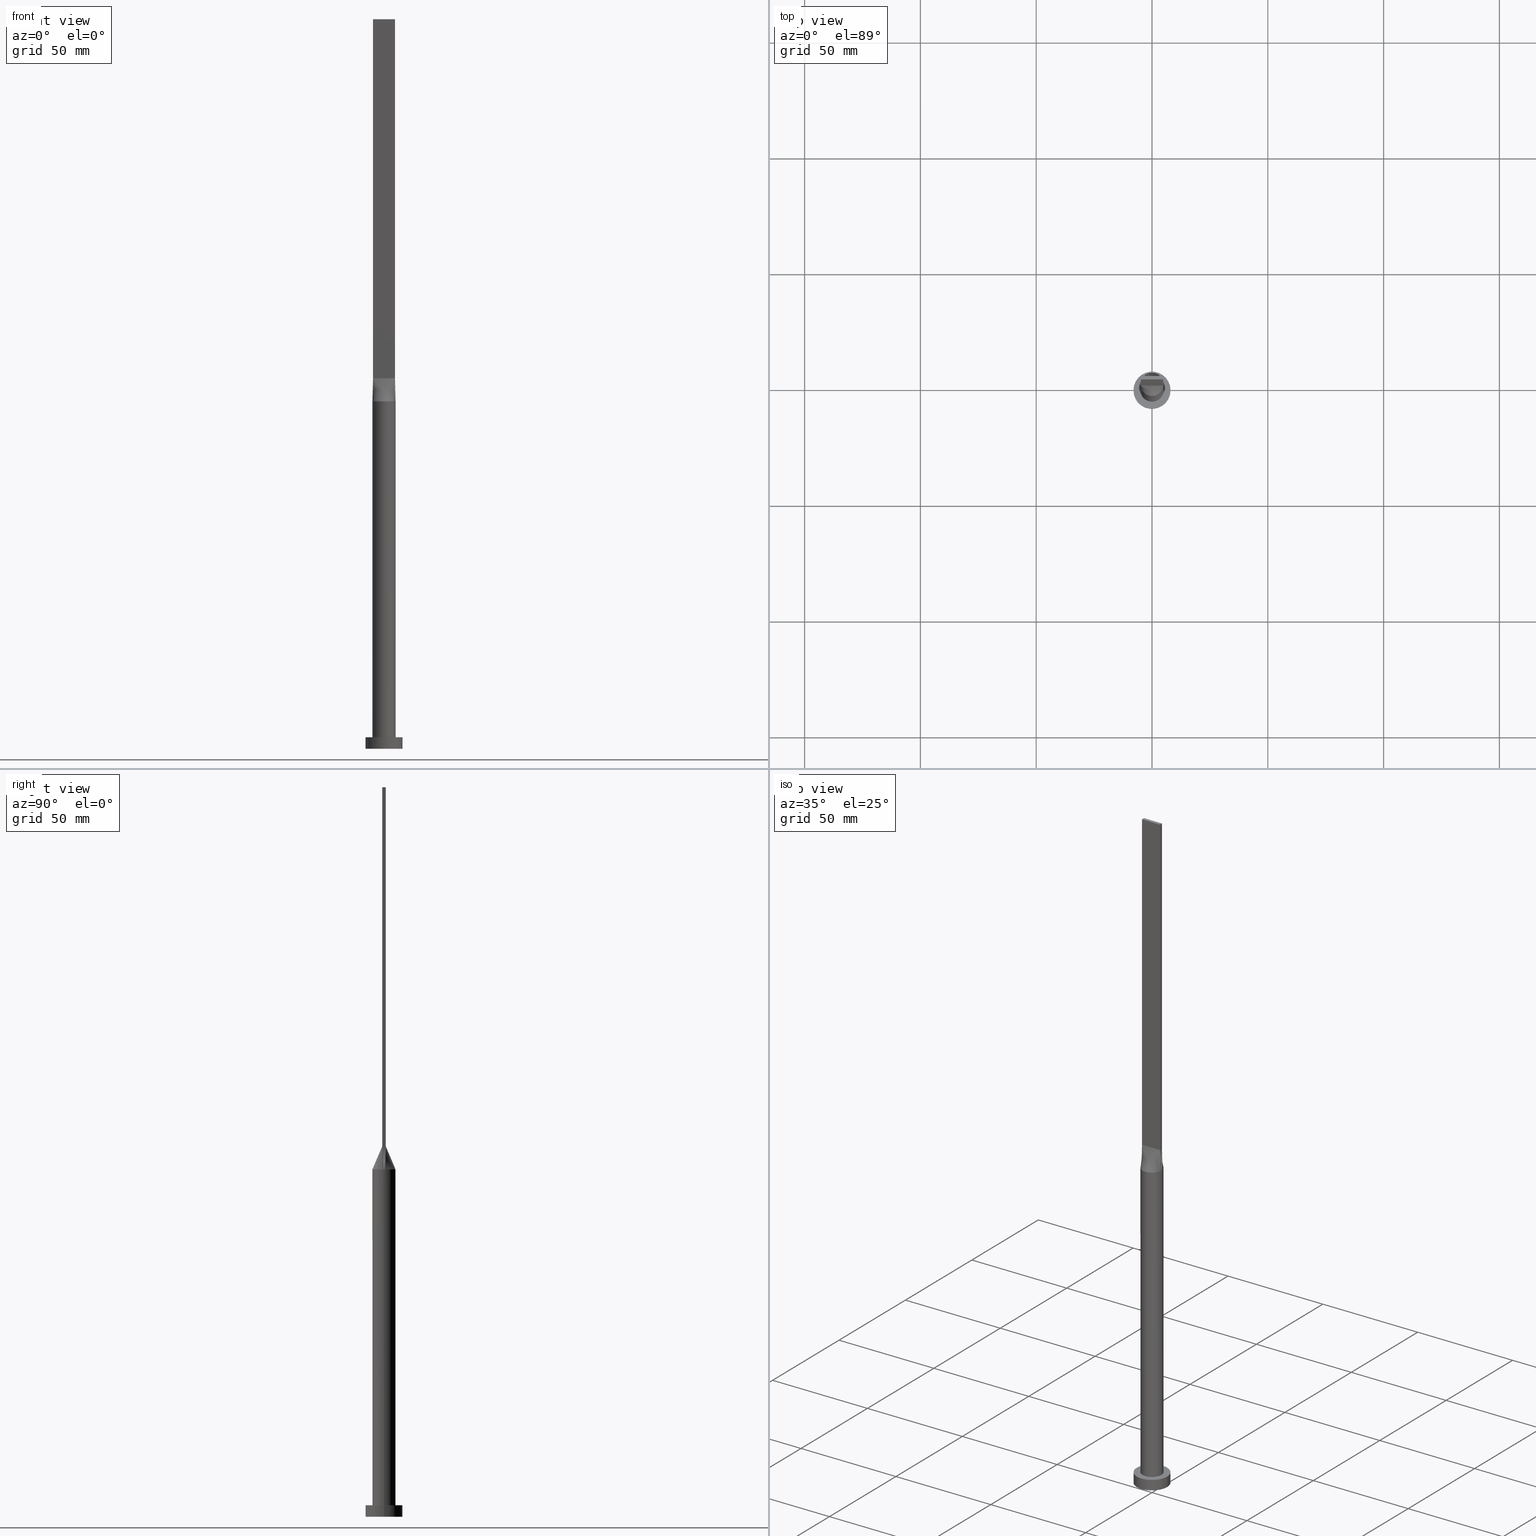
[diagram: canonical four-view strip — front | top / right | iso, engineering-drawing reading convention]
A machine part, canonical four-view strip (front | top / right | iso — engineering-drawing reading convention). The complete STEP part file that produces these views, byte-faithful:
ISO-10303-21;
HEADER;
FILE_DESCRIPTION (( 'STEP AP203' ),
    '1' );
FILE_NAME ('22dd.STEP',
    '2023-02-13T09:34:28',
    ( '' ),
    ( '' ),
    'SwSTEP 2.0',
    'SolidWorks 2019',
    '' );
FILE_SCHEMA (( 'CONFIG_CONTROL_DESIGN' ));
ENDSEC;

DATA;
#1 = EDGE_CURVE ( 'NONE', #397, #456, #499, .T. ) ;
#2 = CARTESIAN_POINT ( 'NONE',  ( -4.938831943662458812, 0.7798155886440081286, 150.0000000000000000 ) ) ;
#3 = DATE_AND_TIME ( #580, #590 ) ;
#4 = PRODUCT ( '22dd', '22dd', '', ( #582 ) ) ;
#5 = CARTESIAN_POINT ( 'NONE',  ( 0.3958333333333295401, 0.7500000000000002220, 159.9999999999999716 ) ) ;
#6 = AXIS2_PLACEMENT_3D ( 'NONE', #248, #101, #45 ) ;
#7 = EDGE_CURVE ( 'NONE', #126, #182, #479, .T. ) ;
#8 = CARTESIAN_POINT ( 'NONE',  ( 2.353781608410062454, 4.424438117685770777, 150.0000000000000000 ) ) ;
#9 = DATE_TIME_ROLE ( 'creation_date' ) ;
#10 = ORIENTED_EDGE ( 'NONE', *, *, #487, .T. ) ;
#11 = DIRECTION ( 'NONE',  ( 1.000000000000000000, 0.000000000000000000, 0.000000000000000000 ) ) ;
#12 = SECURITY_CLASSIFICATION_LEVEL ( 'unclassified' ) ;
#13 = EDGE_LOOP ( 'NONE', ( #309, #24, #236, #586 ) ) ;
#14 = DIRECTION ( 'NONE',  ( 0.000000000000000000, 0.000000000000000000, 1.000000000000000000 ) ) ;
#15 = ORIENTED_EDGE ( 'NONE', *, *, #183, .F. ) ;
#16 = CARTESIAN_POINT ( 'NONE',  ( 0.9895833333333285964, 0.7500000000000002220, 159.9999999999999716 ) ) ;
#17 = AXIS2_PLACEMENT_3D ( 'NONE', #465, #504, #132 ) ;
#18 = ORIENTED_EDGE ( 'NONE', *, *, #514, .F. ) ;
#19 = CC_DESIGN_DATE_AND_TIME_ASSIGNMENT ( #445, #9, ( #299 ) ) ;
#20 = CARTESIAN_POINT ( 'NONE',  ( 0.000000000000000000, 0.000000000000000000, 150.0000000000000000 ) ) ;
#21 = ORIENTED_EDGE ( 'NONE', *, *, #175, .F. ) ;
#22 = CARTESIAN_POINT ( 'NONE',  ( 4.753727492665065668, -1.629988260829203561, 150.0000000000000284 ) ) ;
#23 = CARTESIAN_POINT ( 'NONE',  ( -4.332026455536841070, 2.547220758687717801, 150.0000000000000000 ) ) ;
#24 = ORIENTED_EDGE ( 'NONE', *, *, #487, .F. ) ;
#25 = CARTESIAN_POINT ( 'NONE',  ( 0.9895833333333408088, -0.7499999999999996669, 159.9999999999999432 ) ) ;
#26 = EDGE_CURVE ( 'NONE', #263, #218, #243, .T. ) ;
#27 = CARTESIAN_POINT ( 'NONE',  ( 4.750000000000000000, 0.7500000000000002220, 315.0000000000000000 ) ) ;
#28 = ORIENTED_EDGE ( 'NONE', *, *, #432, .T. ) ;
#29 = VECTOR ( 'NONE', #381, 1000.000000000000000 ) ;
#30 = SECURITY_CLASSIFICATION ( '', '', #12 ) ;
#31 = CARTESIAN_POINT ( 'NONE',  ( 4.354166666666667851, -0.7499999999999997780, 160.0000000000000000 ) ) ;
#32 = DIRECTION ( 'NONE',  ( -0.000000000000000000, 0.000000000000000000, -1.000000000000000000 ) ) ;
#33 = ORIENTED_EDGE ( 'NONE', *, *, #584, .T. ) ;
#34 = CARTESIAN_POINT ( 'NONE',  ( 4.029217956433124748, -3.021257902548483365, 150.0000000000000568 ) ) ;
#35 = PLANE ( 'NONE',  #41 ) ;
#36 = VERTEX_POINT ( 'NONE', #251 ) ;
#37 = CARTESIAN_POINT ( 'NONE',  ( -4.750000000000000000, 0.2500000000000007216, 159.9999999999999716 ) ) ;
#38 = DIRECTION ( 'NONE',  ( -0.000000000000000000, -0.000000000000000000, -1.000000000000000000 ) ) ;
#39 = AXIS2_PLACEMENT_3D ( 'NONE', #47, #296, #245 ) ;
#40 = CARTESIAN_POINT ( 'NONE',  ( 4.874625637456157179, 1.186344398896585606, 150.0000000000000568 ) ) ;
#41 = AXIS2_PLACEMENT_3D ( 'NONE', #370, #374, #32 ) ;
#42 = EDGE_CURVE ( 'NONE', #239, #352, #111, .T. ) ;
#43 =( NAMED_UNIT ( * ) SI_UNIT ( $, .STERADIAN. ) SOLID_ANGLE_UNIT ( ) );
#44 = CARTESIAN_POINT ( 'NONE',  ( -4.750000000000000000, 0.7500000000000002220, 160.0000000000000000 ) ) ;
#45 = DIRECTION ( 'NONE',  ( 1.000000000000000000, 0.000000000000000000, 0.000000000000000000 ) ) ;
#46 = CARTESIAN_POINT ( 'NONE',  ( 4.844407413322673328, -0.7649064336825285304, 155.0000000000000000 ) ) ;
#47 = CARTESIAN_POINT ( 'NONE',  ( 0.000000000000000000, 0.000000000000000000, 150.0000000000000000 ) ) ;
#48 = DIRECTION ( 'NONE',  ( -1.000000000000000000, 0.000000000000000000, 0.000000000000000000 ) ) ;
#49 = EDGE_CURVE ( 'NONE', #352, #549, #572, .T. ) ;
#50 = MANIFOLD_SOLID_BREP ( 'P�idat vysunut�m5', #122 ) ;
#51 = DIRECTION ( 'NONE',  ( 0.000000000000000000, -0.000000000000000000, -1.000000000000000000 ) ) ;
#52 = LOCAL_TIME ( 10, 34, 28.00000000000000000, #160 ) ;
#53 = CARTESIAN_POINT ( 'NONE',  ( 4.979355367185886116, 0.5230561106082972644, 150.0000000000000000 ) ) ;
#54 = COORDINATED_UNIVERSAL_TIME_OFFSET ( 1, 0, .AHEAD. ) ;
#55 = CARTESIAN_POINT ( 'NONE',  ( 0.000000000000000000, 0.000000000000000000, 5.000000000000000000 ) ) ;
#56 = CARTESIAN_POINT ( 'NONE',  ( 2.770833333333329929, 0.7500000000000002220, 159.9999999999999716 ) ) ;
#57 = PERSON_AND_ORGANIZATION ( #454, #82 ) ;
#58 = ORIENTED_EDGE ( 'NONE', *, *, #183, .T. ) ;
#59 = CIRCLE ( 'NONE', #103, 8.000000000000000000 ) ;
#60 = CARTESIAN_POINT ( 'NONE',  ( 4.354166666666666075, 0.7500000000000002220, 160.0000000000000000 ) ) ;
#61 = CALENDAR_DATE ( 2023, 13, 2 ) ;
#62 = ORIENTED_EDGE ( 'NONE', *, *, #329, .T. ) ;
#63 = DIRECTION ( 'NONE',  ( 0.000000000000000000, 0.000000000000000000, 1.000000000000000000 ) ) ;
#64 = ORIENTED_EDGE ( 'NONE', *, *, #175, .T. ) ;
#65 = DIRECTION ( 'NONE',  ( 1.000000000000000000, -6.847592668329501559E-17, 0.000000000000000000 ) ) ;
#66 = EDGE_CURVE ( 'NONE', #549, #453, #144, .T. ) ;
#67 = AXIS2_PLACEMENT_3D ( 'NONE', #528, #382, #51 ) ;
#68 = CARTESIAN_POINT ( 'NONE',  ( 4.938814826645345768, 0.7798128673650542853, 150.0000000000000000 ) ) ;
#69 = CIRCLE ( 'NONE', #155, 5.000000000000000000 ) ;
#70 =( GEOMETRIC_REPRESENTATION_CONTEXT ( 3 ) GLOBAL_UNCERTAINTY_ASSIGNED_CONTEXT ( ( #365 ) ) GLOBAL_UNIT_ASSIGNED_CONTEXT ( ( #83, #399, #43 ) ) REPRESENTATION_CONTEXT ( 'NONE', 'WORKASPACE' ) );
#71 = ORIENTED_EDGE ( 'NONE', *, *, #442, .T. ) ;
#72 = CARTESIAN_POINT ( 'NONE',  ( -4.029217956433124748, 3.021257902548482033, 150.0000000000000000 ) ) ;
#73 = ORIENTED_EDGE ( 'NONE', *, *, #108, .T. ) ;
#74 = EDGE_CURVE ( 'NONE', #218, #126, #293, .T. ) ;
#75 = DIRECTION ( 'NONE',  ( -1.000000000000000000, 0.000000000000000000, 0.000000000000000000 ) ) ;
#76 = CARTESIAN_POINT ( 'NONE',  ( -3.166666666666668739, 0.7500000000000002220, 159.9999999999999716 ) ) ;
#77 = CARTESIAN_POINT ( 'NONE',  ( -0.7119876437238006339, 4.961551549233178982, 149.9999999999999432 ) ) ;
#78 = CARTESIAN_POINT ( 'NONE',  ( 3.166666666666672292, -0.7499999999999997780, 159.9999999999999716 ) ) ;
#79 = CARTESIAN_POINT ( 'NONE',  ( 0.000000000000000000, 0.000000000000000000, 150.0000000000000000 ) ) ;
#80 = CARTESIAN_POINT ( 'NONE',  ( -4.753727492665067444, 1.629988260829202007, 150.0000000000000568 ) ) ;
#81 = AXIS2_PLACEMENT_3D ( 'NONE', #478, #434, #431 ) ;
#82 = ORGANIZATION ( 'NEUR�EN�', 'NEUR�EN�', '' ) ;
#83 =( LENGTH_UNIT ( ) NAMED_UNIT ( * ) SI_UNIT ( .MILLI., .METRE. ) );
#84 = CARTESIAN_POINT ( 'NONE',  ( -4.753727492665067444, 1.629988260829202007, 150.0000000000000568 ) ) ;
#85 = CARTESIAN_POINT ( 'NONE',  ( 2.643217737595826566, 4.256483892511437439, 150.0000000000000568 ) ) ;
#86 = CARTESIAN_POINT ( 'NONE',  ( -0.7119876437238014111, -4.961551549233179870, 150.0000000000000000 ) ) ;
#87 = CARTESIAN_POINT ( 'NONE',  ( -3.958333333333332149, -0.7499999999999993339, 160.0000000000000000 ) ) ;
#88 = B_SPLINE_SURFACE_WITH_KNOTS ( 'NONE', 3, 1, ( 
 ( #364, #468 ),
 ( #180, #237 ),
 ( #520, #37 ),
 ( #600, #426 ),
 ( #177, #317 ),
 ( #369, #559 ) ),
 .UNSPECIFIED., .F., .F., .F.,
 ( 4, 2, 4 ),
 ( 2, 2 ),
 ( 0.000000000000000000, 0.5000000000000000000, 1.000000000000000000 ),
 ( 0.000000000000000000, 1.000000000000000000 ),
 .UNSPECIFIED. ) ;
#89 = EDGE_LOOP ( 'NONE', ( #498, #15 ) ) ;
#90 = ADVANCED_FACE ( 'NONE', ( #436 ), #137, .T. ) ;
#91 = CARTESIAN_POINT ( 'NONE',  ( -0.9895833333333258208, -0.7499999999999995559, 159.9999999999999716 ) ) ;
#92 = CARTESIAN_POINT ( 'NONE',  ( -3.168723755431094524, -3.881165404529569152, 149.9999999999999716 ) ) ;
#93 = AXIS2_PLACEMENT_3D ( 'NONE', #438, #481, #247 ) ;
#94 = CARTESIAN_POINT ( 'NONE',  ( 4.750000000000000000, 0.2499999999999996669, 159.9999999999999716 ) ) ;
#95 = AXIS2_PLACEMENT_3D ( 'NONE', #292, #97, #330 ) ;
#96 = APPROVAL_DATE_TIME ( #202, #551 ) ;
#97 = DIRECTION ( 'NONE',  ( 0.000000000000000000, 0.000000000000000000, 1.000000000000000000 ) ) ;
#98 = DIRECTION ( 'NONE',  ( -1.000000000000000000, -0.000000000000000000, -0.000000000000000000 ) ) ;
#99 = APPROVAL ( #212, 'NEUR�EN�' ) ;
#100 = LINE ( 'NONE', #149, #542 ) ;
#101 = DIRECTION ( 'NONE',  ( 0.000000000000000000, 0.000000000000000000, 1.000000000000000000 ) ) ;
#102 = LINE ( 'NONE', #476, #205 ) ;
#103 = AXIS2_PLACEMENT_3D ( 'NONE', #537, #14, #303 ) ;
#104 = CARTESIAN_POINT ( 'NONE',  ( -4.844407413322673328, -0.7649064336825261989, 155.0000000000000000 ) ) ;
#105 = SHAPE_DEFINITION_REPRESENTATION ( #496, #320 ) ;
#106 = DIRECTION ( 'NONE',  ( 0.000000000000000000, 0.000000000000000000, 1.000000000000000000 ) ) ;
#107 = ORIENTED_EDGE ( 'NONE', *, *, #211, .T. ) ;
#108 = EDGE_CURVE ( 'NONE', #344, #304, #430, .T. ) ;
#109 = PLANE ( 'NONE',  #473 ) ;
#110 = PERSON_AND_ORGANIZATION ( #454, #82 ) ;
#111 = CIRCLE ( 'NONE', #39, 5.000000000000000000 ) ;
#112 = ORIENTED_EDGE ( 'NONE', *, *, #594, .T. ) ;
#113 = VECTOR ( 'NONE', #390, 1000.000000000000000 ) ;
#114 = VECTOR ( 'NONE', #244, 1000.000000000000000 ) ;
#115 = VECTOR ( 'NONE', #553, 1000.000000000000000 ) ;
#116 = CARTESIAN_POINT ( 'NONE',  ( 3.404830936252119411, 3.673931880027066388, 150.0000000000000000 ) ) ;
#117 = ORIENTED_EDGE ( 'NONE', *, *, #578, .T. ) ;
#118 = CARTESIAN_POINT ( 'NONE',  ( 1.732223102076450250, 4.702695359254404295, 149.9999999999999716 ) ) ;
#119 = ORIENTED_EDGE ( 'NONE', *, *, #42, .F. ) ;
#120 = LINE ( 'NONE', #354, #482 ) ;
#121 = EDGE_LOOP ( 'NONE', ( #117, #547, #355, #446 ) ) ;
#122 = CLOSED_SHELL ( 'NONE', ( #411, #203, #603, #250, #241, #336, #540, #90, #615, #308, #148, #353, #467, #377, #255 ) ) ;
#123 = CYLINDRICAL_SURFACE ( 'NONE', #360, 5.000000000000000000 ) ;
#124 = AXIS2_PLACEMENT_3D ( 'NONE', #612, #567, #334 ) ;
#125 = AXIS2_PLACEMENT_3D ( 'NONE', #486, #535, #472 ) ;
#126 = VERTEX_POINT ( 'NONE', #575 ) ;
#127 = PRODUCT_RELATED_PRODUCT_CATEGORY ( 'detail', '', ( #4 ) ) ;
#128 = FACE_OUTER_BOUND ( 'NONE', #254, .T. ) ;
#129 = DIRECTION ( 'NONE',  ( -0.000000000000000000, -0.000000000000000000, -1.000000000000000000 ) ) ;
#130 = VERTEX_POINT ( 'NONE', #483 ) ;
#131 = CARTESIAN_POINT ( 'NONE',  ( -0.3560391241594598188, -5.000000000000001776, 150.0000000000000284 ) ) ;
#132 = DIRECTION ( 'NONE',  ( 0.000000000000000000, 0.000000000000000000, 1.000000000000000000 ) ) ;
#133 = CARTESIAN_POINT ( 'NONE',  ( 4.029217956433126524, 3.021257902548482477, 150.0000000000000000 ) ) ;
#134 = DIRECTION ( 'NONE',  ( -0.000000000000000000, 1.000000000000000000, -0.000000000000000000 ) ) ;
#135 = CARTESIAN_POINT ( 'NONE',  ( -2.770833333333335702, 0.7500000000000002220, 159.9999999999999716 ) ) ;
#136 = EDGE_LOOP ( 'NONE', ( #466, #28, #176, #420, #18 ) ) ;
#137 = B_SPLINE_SURFACE_WITH_KNOTS ( 'NONE', 3, 1, ( 
 ( #621, #337 ),
 ( #328, #522 ),
 ( #389, #617 ),
 ( #433, #94 ),
 ( #53, #286 ),
 ( #577, #619 ) ),
 .UNSPECIFIED., .F., .F., .F.,
 ( 4, 2, 4 ),
 ( 2, 2 ),
 ( 0.000000000000000000, 0.5000000000000000000, 1.000000000000000000 ),
 ( 0.000000000000000000, 1.000000000000000000 ),
 .UNSPECIFIED. ) ;
#138 = CARTESIAN_POINT ( 'NONE',  ( 8.000000000000000000, 9.797174393178825657E-16, 5.000000000000000000 ) ) ;
#139 = EDGE_CURVE ( 'NONE', #266, #344, #471, .T. ) ;
#140 = DIRECTION ( 'NONE',  ( 0.000000000000000000, 0.000000000000000000, 1.000000000000000000 ) ) ;
#141 = CARTESIAN_POINT ( 'NONE',  ( 3.168723755431093192, 3.881165404529570040, 149.9999999999999716 ) ) ;
#142 = CARTESIAN_POINT ( 'NONE',  ( 1.583333333333340143, -0.7499999999999997780, 159.9999999999999716 ) ) ;
#143 = CARTESIAN_POINT ( 'NONE',  ( -4.354166666666666075, -0.7499999999999992228, 160.0000000000000000 ) ) ;
#144 = LINE ( 'NONE', #571, #215 ) ;
#145 = CALENDAR_DATE ( 2023, 13, 2 ) ;
#146 = CARTESIAN_POINT ( 'NONE',  ( -1.732223102076450250, -4.702695359254402518, 150.0000000000000000 ) ) ;
#147 = CARTESIAN_POINT ( 'NONE',  ( 0.000000000000000000, 0.000000000000000000, 150.0000000000000000 ) ) ;
#148 = ADVANCED_FACE ( 'NONE', ( #153 ), #150, .F. ) ;
#149 = CARTESIAN_POINT ( 'NONE',  ( 4.750000000000000000, 0.7500000000000002220, 315.0000000000000000 ) ) ;
#150 = PLANE ( 'NONE',  #67 ) ;
#151 = CARTESIAN_POINT ( 'NONE',  ( -4.753727492665065668, -1.629988260829201119, 150.0000000000000000 ) ) ;
#152 = CARTESIAN_POINT ( 'NONE',  ( 4.750000000000000000, 0.7500000000000002220, 315.0000000000000000 ) ) ;
#153 = FACE_OUTER_BOUND ( 'NONE', #13, .T. ) ;
#154 = APPROVAL_DATE_TIME ( #3, #165 ) ;
#155 = AXIS2_PLACEMENT_3D ( 'NONE', #20, #554, #462 ) ;
#156 = EDGE_CURVE ( 'NONE', #130, #417, #102, .T. ) ;
#157 = CARTESIAN_POINT ( 'NONE',  ( -4.750000000000000000, -0.7499999999999991118, 160.0000000000000000 ) ) ;
#158 = PERSON_AND_ORGANIZATION ( #454, #82 ) ;
#159 = CARTESIAN_POINT ( 'NONE',  ( -4.750000000000000000, 0.7500000000000002220, 315.0000000000000000 ) ) ;
#160 = COORDINATED_UNIVERSAL_TIME_OFFSET ( 1, 0, .AHEAD. ) ;
#161 = ORIENTED_EDGE ( 'NONE', *, *, #403, .T. ) ;
#162 = CARTESIAN_POINT ( 'NONE',  ( 4.750000000000000000, 0.7500000000000002220, 160.0000000000000000 ) ) ;
#163 = DATE_AND_TIME ( #533, #206 ) ;
#164 = ORIENTED_EDGE ( 'NONE', *, *, #26, .F. ) ;
#165 = APPROVAL ( #484, 'NEUR�EN�' ) ;
#166 = APPROVAL_PERSON_ORGANIZATION ( #208, #551, #585 ) ;
#167 = CARTESIAN_POINT ( 'NONE',  ( 1.979166666666662078, 0.7500000000000002220, 159.9999999999999716 ) ) ;
#168 = ORIENTED_EDGE ( 'NONE', *, *, #193, .T. ) ;
#169 = CARTESIAN_POINT ( 'NONE',  ( 0.000000000000000000, 0.000000000000000000, 5.000000000000000000 ) ) ;
#170 = ORIENTED_EDGE ( 'NONE', *, *, #49, .F. ) ;
#171 = LINE ( 'NONE', #318, #287 ) ;
#172 = CARTESIAN_POINT ( 'NONE',  ( -4.029217956433124748, 3.021257902548482033, 150.0000000000000000 ) ) ;
#173 = CARTESIAN_POINT ( 'NONE',  ( 0.7916666666666742902, -0.7499999999999995559, 159.9999999999999432 ) ) ;
#174 = DIRECTION ( 'NONE',  ( 0.000000000000000000, -1.000000000000000000, 0.000000000000000000 ) ) ;
#175 = EDGE_CURVE ( 'NONE', #322, #453, #284, .T. ) ;
#176 = ORIENTED_EDGE ( 'NONE', *, *, #387, .T. ) ;
#177 = CARTESIAN_POINT ( 'NONE',  ( -4.979355367185885228, -0.5230561106082968204, 150.0000000000000000 ) ) ;
#178 = CARTESIAN_POINT ( 'NONE',  ( 0.000000000000000000, 0.000000000000000000, 150.0000000000000000 ) ) ;
#179 = EDGE_LOOP ( 'NONE', ( #536, #170, #119, #492, #161, #64 ) ) ;
#180 = CARTESIAN_POINT ( 'NONE',  ( -4.979355367185886116, 0.5230561106082979306, 150.0000000000000000 ) ) ;
#181 = DIRECTION ( 'NONE',  ( 1.000000000000000000, 0.000000000000000000, 0.000000000000000000 ) ) ;
#182 = VERTEX_POINT ( 'NONE', #152 ) ;
#183 = EDGE_CURVE ( 'NONE', #512, #304, #357, .T. ) ;
#184 = CARTESIAN_POINT ( 'NONE',  ( 0.3958333333333404758, -0.7499999999999994449, 159.9999999999999432 ) ) ;
#185 = CARTESIAN_POINT ( 'NONE',  ( -1.583333333333335924, 0.7500000000000002220, 159.9999999999999432 ) ) ;
#186 = CARTESIAN_POINT ( 'NONE',  ( 0.3560391241594590972, 5.000000000000001776, 150.0000000000000568 ) ) ;
#187 = CARTESIAN_POINT ( 'NONE',  ( 3.958333333333336146, -0.7499999999999997780, 160.0000000000000000 ) ) ;
#188 = DESIGN_CONTEXT ( 'detailed design', #410, 'design' ) ;
#189 = LINE ( 'NONE', #527, #114 ) ;
#190 = DIRECTION ( 'NONE',  ( 1.000000000000000000, -6.847592668329501559E-17, 0.000000000000000000 ) ) ;
#191 = DATE_AND_TIME ( #249, #573 ) ;
#192 = CARTESIAN_POINT ( 'NONE',  ( -1.385416666666659857, -0.7499999999999995559, 159.9999999999999716 ) ) ;
#193 = EDGE_CURVE ( 'NONE', #282, #239, #531, .T. ) ;
#194 = DIRECTION ( 'NONE',  ( 0.000000000000000000, 0.000000000000000000, 1.000000000000000000 ) ) ;
#195 = PLANE ( 'NONE',  #81 ) ;
#196 = DIRECTION ( 'NONE',  ( -0.000000000000000000, -0.000000000000000000, -1.000000000000000000 ) ) ;
#197 = AXIS2_PLACEMENT_3D ( 'NONE', #178, #311, #601 ) ;
#198 = APPROVAL_PERSON_ORGANIZATION ( #57, #99, #538 ) ;
#199 = CARTESIAN_POINT ( 'NONE',  ( -2.177083333333328152, -0.7499999999999995559, 159.9999999999999716 ) ) ;
#200 = DIRECTION ( 'NONE',  ( 0.000000000000000000, 0.000000000000000000, 1.000000000000000000 ) ) ;
#201 = CARTESIAN_POINT ( 'NONE',  ( 4.750000000000000000, -0.7499999999999997780, 315.0000000000000000 ) ) ;
#202 = DATE_AND_TIME ( #61, #404 ) ;
#203 = ADVANCED_FACE ( 'NONE', ( #379 ), #485, .T. ) ;
#204 = CARTESIAN_POINT ( 'NONE',  ( 0.3560391241594590972, 5.000000000000001776, 150.0000000000000568 ) ) ;
#205 = VECTOR ( 'NONE', #98, 1000.000000000000000 ) ;
#206 = LOCAL_TIME ( 10, 34, 28.00000000000000000, #441 ) ;
#207 = DIRECTION ( 'NONE',  ( 1.000000000000000000, 0.000000000000000000, -0.000000000000000000 ) ) ;
#208 = PERSON_AND_ORGANIZATION ( #454, #82 ) ;
#209 = EDGE_LOOP ( 'NONE', ( #213, #599, #73, #371 ) ) ;
#210 = CARTESIAN_POINT ( 'NONE',  ( 4.750000000000000000, -0.7499999999999997780, 160.0000000000000000 ) ) ;
#211 = EDGE_CURVE ( 'NONE', #453, #322, #503, .T. ) ;
#212 = APPROVAL_STATUS ( 'not_yet_approved' ) ;
#213 = ORIENTED_EDGE ( 'NONE', *, *, #594, .F. ) ;
#214 = FACE_OUTER_BOUND ( 'NONE', #509, .T. ) ;
#215 = VECTOR ( 'NONE', #338, 1000.000000000000000 ) ;
#216 = ORIENTED_EDGE ( 'NONE', *, *, #74, .T. ) ;
#217 = CARTESIAN_POINT ( 'NONE',  ( 0.7916666666666619667, 0.7500000000000002220, 159.9999999999999716 ) ) ;
#218 = VERTEX_POINT ( 'NONE', #345 ) ;
#219 = CARTESIAN_POINT ( 'NONE',  ( -1.400150253878312823, 4.812847332616943419, 149.9999999999999432 ) ) ;
#220 = EDGE_LOOP ( 'NONE', ( #21, #606 ) ) ;
#221 = CARTESIAN_POINT ( 'NONE',  ( 4.938814826645345768, -0.7798128673650571718, 150.0000000000000000 ) ) ;
#222 = EDGE_CURVE ( 'NONE', #344, #266, #59, .T. ) ;
#223 = CARTESIAN_POINT ( 'NONE',  ( -3.958333333333334370, 0.7500000000000002220, 159.9999999999999716 ) ) ;
#224 = ORIENTED_EDGE ( 'NONE', *, *, #1, .F. ) ;
#225 = LINE ( 'NONE', #418, #532 ) ;
#226 = CIRCLE ( 'NONE', #197, 5.000000000000000000 ) ;
#227 = DIRECTION ( 'NONE',  ( -1.000000000000000000, 0.000000000000000000, 0.000000000000000000 ) ) ;
#228 = VECTOR ( 'NONE', #38, 1000.000000000000000 ) ;
#229 = ORIENTED_EDGE ( 'NONE', *, *, #432, .F. ) ;
#230 = CARTESIAN_POINT ( 'NONE',  ( 4.750000000000000000, -0.7499999999999997780, 160.0000000000000000 ) ) ;
#231 = CARTESIAN_POINT ( 'NONE',  ( -0.3958333333333367565, 0.7500000000000002220, 159.9999999999999432 ) ) ;
#232 = CARTESIAN_POINT ( 'NONE',  ( 4.332026455536839293, 2.547220758687718689, 150.0000000000000000 ) ) ;
#233 = EDGE_CURVE ( 'NONE', #282, #302, #497, .T. ) ;
#234 = CARTESIAN_POINT ( 'NONE',  ( 2.770833333333340143, -0.7499999999999997780, 159.9999999999999716 ) ) ;
#235 = LINE ( 'NONE', #423, #29 ) ;
#236 = ORIENTED_EDGE ( 'NONE', *, *, #442, .F. ) ;
#237 = CARTESIAN_POINT ( 'NONE',  ( -4.750000000000000000, 0.5000000000000004441, 159.9999999999999716 ) ) ;
#238 = CARTESIAN_POINT ( 'NONE',  ( -4.874625637456154514, -1.186344398896584718, 150.0000000000000284 ) ) ;
#239 = VERTEX_POINT ( 'NONE', #252 ) ;
#240 = APPLICATION_PROTOCOL_DEFINITION ( 'international standard', 'config_control_design', 1994, #444 ) ;
#241 = ADVANCED_FACE ( 'NONE', ( #494 ), #592, .F. ) ;
#242 = LINE ( 'NONE', #383, #228 ) ;
#243 = LINE ( 'NONE', #568, #113 ) ;
#244 = DIRECTION ( 'NONE',  ( -0.000000000000000000, -0.000000000000000000, -1.000000000000000000 ) ) ;
#245 = DIRECTION ( 'NONE',  ( 1.000000000000000000, 0.000000000000000000, 0.000000000000000000 ) ) ;
#246 = CARTESIAN_POINT ( 'NONE',  ( -4.938831943662458812, 0.7798155886440081286, 150.0000000000000000 ) ) ;
#247 = DIRECTION ( 'NONE',  ( 1.000000000000000000, 0.000000000000000000, 0.000000000000000000 ) ) ;
#248 = CARTESIAN_POINT ( 'NONE',  ( 0.000000000000000000, 0.000000000000000000, 5.000000000000000000 ) ) ;
#249 = CALENDAR_DATE ( 2023, 13, 2 ) ;
#250 = ADVANCED_FACE ( 'NONE', ( #548, #341 ), #109, .T. ) ;
#251 = CARTESIAN_POINT ( 'NONE',  ( -4.999812818728077701, -1.193032336741890821E-15, 150.0000000000000000 ) ) ;
#252 = CARTESIAN_POINT ( 'NONE',  ( -4.938821632323166178, -0.7798139456827060112, 150.0000000000000000 ) ) ;
#253 = APPROVAL_DATE_TIME ( #163, #99 ) ;
#254 = EDGE_LOOP ( 'NONE', ( #62, #490, #495, #463, #367 ) ) ;
#255 = ADVANCED_FACE ( 'NONE', ( #298 ), #491, .T. ) ;
#256 = CARTESIAN_POINT ( 'NONE',  ( 0.000000000000000000, 0.000000000000000000, 5.000000000000000000 ) ) ;
#257 = PERSON_AND_ORGANIZATION ( #454, #82 ) ;
#258 = EDGE_LOOP ( 'NONE', ( #362, #545, #539, #33 ) ) ;
#259 = DIRECTION ( 'NONE',  ( 0.000000000000000000, 0.000000000000000000, 1.000000000000000000 ) ) ;
#260 = ORIENTED_EDGE ( 'NONE', *, *, #108, .F. ) ;
#261 = DIRECTION ( 'NONE',  ( 1.000000000000000000, 0.000000000000000000, -0.000000000000000000 ) ) ;
#262 = AXIS2_PLACEMENT_3D ( 'NONE', #579, #194, #335 ) ;
#263 = VERTEX_POINT ( 'NONE', #159 ) ;
#264 = VECTOR ( 'NONE', #409, 1000.000000000000000 ) ;
#265 = CARTESIAN_POINT ( 'NONE',  ( -3.404830936252120299, 3.673931880027067720, 150.0000000000000000 ) ) ;
#266 = VERTEX_POINT ( 'NONE', #488 ) ;
#267 = CC_DESIGN_PERSON_AND_ORGANIZATION_ASSIGNMENT ( #110, #439, ( #437 ) ) ;
#268 = CARTESIAN_POINT ( 'NONE',  ( -0.7119876437238006339, 4.961551549233178982, 149.9999999999999432 ) ) ;
#269 = CARTESIAN_POINT ( 'NONE',  ( 1.400150253878312823, 4.812847332616943419, 149.9999999999999716 ) ) ;
#270 = CARTESIAN_POINT ( 'NONE',  ( 0.7119876437238003009, -4.961551549233181646, 149.9999999999999432 ) ) ;
#271 = CARTESIAN_POINT ( 'NONE',  ( -1.979166666666668961, 0.7500000000000002220, 159.9999999999999432 ) ) ;
#272 = CARTESIAN_POINT ( 'NONE',  ( -2.353781608410062010, 4.424438117685770777, 149.9999999999999432 ) ) ;
#273 = CARTESIAN_POINT ( 'NONE',  ( 4.874625637456156291, -1.186344398896586938, 149.9999999999999432 ) ) ;
#274 = CC_DESIGN_PERSON_AND_ORGANIZATION_ASSIGNMENT ( #349, #523, ( #299 ) ) ;
#275 = CARTESIAN_POINT ( 'NONE',  ( 4.844407413322673328, 0.7649064336825270871, 155.0000000000000000 ) ) ;
#276 = EDGE_LOOP ( 'NONE', ( #555, #561 ) ) ;
#277 = CARTESIAN_POINT ( 'NONE',  ( 2.177083333333340143, -0.7499999999999997780, 159.9999999999999716 ) ) ;
#278 = CARTESIAN_POINT ( 'NONE',  ( -2.353781608410062010, 4.424438117685770777, 149.9999999999999432 ) ) ;
#279 = CARTESIAN_POINT ( 'NONE',  ( 2.353781608410062454, 4.424438117685770777, 150.0000000000000000 ) ) ;
#280 = CARTESIAN_POINT ( 'NONE',  ( 0.1979166666666732077, -0.7499999999999994449, 159.9999999999999432 ) ) ;
#281 = CARTESIAN_POINT ( 'NONE',  ( -4.332026455536839293, -2.547220758687717801, 150.0000000000000000 ) ) ;
#282 = VERTEX_POINT ( 'NONE', #157 ) ;
#283 = CARTESIAN_POINT ( 'NONE',  ( -0.1979166666666600516, -0.7499999999999994449, 159.9999999999999432 ) ) ;
#284 = CIRCLE ( 'NONE', #6, 5.000000000000000000 ) ;
#285 = CARTESIAN_POINT ( 'NONE',  ( -2.643217737595827010, -4.256483892511436551, 150.0000000000000000 ) ) ;
#286 = CARTESIAN_POINT ( 'NONE',  ( 4.750000000000000000, 0.4999999999999997780, 159.9999999999999716 ) ) ;
#287 = VECTOR ( 'NONE', #174, 1000.000000000000000 ) ;
#288 = CC_DESIGN_PERSON_AND_ORGANIZATION_ASSIGNMENT ( #257, #448, ( #437 ) ) ;
#289 = COORDINATED_UNIVERSAL_TIME_OFFSET ( 1, 0, .AHEAD. ) ;
#290 = FACE_OUTER_BOUND ( 'NONE', #258, .T. ) ;
#291 = DIRECTION ( 'NONE',  ( 0.000000000000000000, 1.000000000000000000, 0.000000000000000000 ) ) ;
#292 = CARTESIAN_POINT ( 'NONE',  ( 0.000000000000000000, 0.000000000000000000, 150.0000000000000000 ) ) ;
#293 = LINE ( 'NONE', #332, #294 ) ;
#294 = VECTOR ( 'NONE', #190, 1000.000000000000000 ) ;
#295 = EDGE_CURVE ( 'NONE', #456, #417, #120, .T. ) ;
#296 = DIRECTION ( 'NONE',  ( 0.000000000000000000, 0.000000000000000000, 1.000000000000000000 ) ) ;
#297 = DIRECTION ( 'NONE',  ( -0.01887803397728730556, -0.002980742206940059473, -0.9998173508241633423 ) ) ;
#298 = FACE_OUTER_BOUND ( 'NONE', #588, .T. ) ;
#299 = PRODUCT_DEFINITION ( 'NEZN�M�', '', #437, #188 ) ;
#300 = CARTESIAN_POINT ( 'NONE',  ( -4.750000000000000000, -0.7499999999999991118, 160.0000000000000000 ) ) ;
#301 = VECTOR ( 'NONE', #297, 1000.000000000000114 ) ;
#302 = VERTEX_POINT ( 'NONE', #210 ) ;
#303 = DIRECTION ( 'NONE',  ( 1.000000000000000000, 0.000000000000000000, 0.000000000000000000 ) ) ;
#304 = VERTEX_POINT ( 'NONE', #587 ) ;
#305 = DIRECTION ( 'NONE',  ( -1.000000000000000000, 0.000000000000000000, 0.000000000000000000 ) ) ;
#306 = EDGE_LOOP ( 'NONE', ( #408, #596, #402, #168 ) ) ;
#307 = CARTESIAN_POINT ( 'NONE',  ( 4.874625637456157179, 1.186344398896585606, 150.0000000000000568 ) ) ;
#308 = ADVANCED_FACE ( 'NONE', ( #214 ), #368, .T. ) ;
#309 = ORIENTED_EDGE ( 'NONE', *, *, #156, .T. ) ;
#310 = AXIS2_PLACEMENT_3D ( 'NONE', #256, #63, #11 ) ;
#311 = DIRECTION ( 'NONE',  ( 0.000000000000000000, 0.000000000000000000, 1.000000000000000000 ) ) ;
#312 = CARTESIAN_POINT ( 'NONE',  ( 4.753727492665065668, 1.629988260829201563, 150.0000000000000000 ) ) ;
#313 = CARTESIAN_POINT ( 'NONE',  ( -1.400150253878313711, -4.812847332616943419, 149.9999999999999716 ) ) ;
#314 = FACE_OUTER_BOUND ( 'NONE', #121, .T. ) ;
#315 = CARTESIAN_POINT ( 'NONE',  ( 0.7119876437238013001, 4.961551549233180758, 149.9999999999999716 ) ) ;
#316 = EDGE_CURVE ( 'NONE', #182, #130, #550, .T. ) ;
#317 = CARTESIAN_POINT ( 'NONE',  ( -4.750000000000000000, -0.4999999999999990563, 159.9999999999999716 ) ) ;
#318 = CARTESIAN_POINT ( 'NONE',  ( -4.750000000000000000, 0.7500000000000002220, 160.0000000000000000 ) ) ;
#319 = CARTESIAN_POINT ( 'NONE',  ( -1.732223102076449806, 4.702695359254402518, 149.9999999999999432 ) ) ;
#320 = ADVANCED_BREP_SHAPE_REPRESENTATION ( '22dd', ( #50, #125 ), #70 ) ;
#321 = CARTESIAN_POINT ( 'NONE',  ( -4.354166666666666963, 0.7500000000000002220, 159.9999999999999716 ) ) ;
#322 = VERTEX_POINT ( 'NONE', #598 ) ;
#323 = CARTESIAN_POINT ( 'NONE',  ( 0.000000000000000000, 0.000000000000000000, 5.000000000000000000 ) ) ;
#324 = DIRECTION ( 'NONE',  ( -0.000000000000000000, -0.000000000000000000, -1.000000000000000000 ) ) ;
#325 = CARTESIAN_POINT ( 'NONE',  ( -1.400150253878312823, 4.812847332616943419, 149.9999999999999432 ) ) ;
#326 = LINE ( 'NONE', #138, #115 ) ;
#327 = CARTESIAN_POINT ( 'NONE',  ( -3.166666666666662966, -0.7499999999999993339, 159.9999999999999716 ) ) ;
#328 = CARTESIAN_POINT ( 'NONE',  ( 4.979355367185886116, -0.5230561106082984857, 150.0000000000000000 ) ) ;
#329 = EDGE_CURVE ( 'NONE', #456, #36, #69, .T. ) ;
#330 = DIRECTION ( 'NONE',  ( 1.000000000000000000, 0.000000000000000000, 0.000000000000000000 ) ) ;
#331 = AXIS2_PLACEMENT_3D ( 'NONE', #443, #534, #261 ) ;
#332 = CARTESIAN_POINT ( 'NONE',  ( -4.750000000000000000, -0.7499999999999991118, 315.0000000000000000 ) ) ;
#333 = AXIS2_PLACEMENT_3D ( 'NONE', #351, #106, #207 ) ;
#334 = DIRECTION ( 'NONE',  ( -1.000000000000000000, 0.000000000000000000, 0.000000000000000000 ) ) ;
#335 = DIRECTION ( 'NONE',  ( 1.000000000000000000, 0.000000000000000000, 0.000000000000000000 ) ) ;
#336 = ADVANCED_FACE ( 'NONE', ( #595 ), #123, .T. ) ;
#337 = CARTESIAN_POINT ( 'NONE',  ( 4.750000000000000000, -0.7499999999999997780, 160.0000000000000000 ) ) ;
#338 = DIRECTION ( 'NONE',  ( -0.000000000000000000, -0.000000000000000000, -1.000000000000000000 ) ) ;
#339 = VECTOR ( 'NONE', #65, 1000.000000000000000 ) ;
#340 = CC_DESIGN_APPROVAL ( #551, ( #437 ) ) ;
#341 = FACE_OUTER_BOUND ( 'NONE', #276, .T. ) ;
#342 = EDGE_CURVE ( 'NONE', #417, #282, #171, .T. ) ;
#343 = PERSON_AND_ORGANIZATION_ROLE ( 'design_owner' ) ;
#344 = VERTEX_POINT ( 'NONE', #356 ) ;
#345 = CARTESIAN_POINT ( 'NONE',  ( -4.750000000000000000, -0.7499999999999991118, 315.0000000000000000 ) ) ;
#346 = COORDINATED_UNIVERSAL_TIME_OFFSET ( 1, 0, .AHEAD. ) ;
#347 = EDGE_LOOP ( 'NONE', ( #602, #112, #58, #260 ) ) ;
#348 = CARTESIAN_POINT ( 'NONE',  ( 3.958333333333332149, 0.7500000000000002220, 160.0000000000000000 ) ) ;
#349 = PERSON_AND_ORGANIZATION ( #454, #82 ) ;
#350 = ORIENTED_EDGE ( 'NONE', *, *, #329, .F. ) ;
#351 = CARTESIAN_POINT ( 'NONE',  ( 0.000000000000000000, 0.000000000000000000, 0.000000000000000000 ) ) ;
#352 = VERTEX_POINT ( 'NONE', #416 ) ;
#353 = ADVANCED_FACE ( 'NONE', ( #412 ), #35, .F. ) ;
#354 = CARTESIAN_POINT ( 'NONE',  ( -4.844407413322673328, 0.7649064336825274202, 155.0000000000000000 ) ) ;
#355 = ORIENTED_EDGE ( 'NONE', *, *, #7, .F. ) ;
#356 = CARTESIAN_POINT ( 'NONE',  ( -8.000000000000000000, 0.000000000000000000, 5.000000000000000000 ) ) ;
#357 = CIRCLE ( 'NONE', #93, 8.000000000000000000 ) ;
#358 = CARTESIAN_POINT ( 'NONE',  ( -4.332026455536841070, 2.547220758687717801, 150.0000000000000000 ) ) ;
#359 = CARTESIAN_POINT ( 'NONE',  ( 1.385416666666673624, -0.7499999999999997780, 159.9999999999999716 ) ) ;
#360 = AXIS2_PLACEMENT_3D ( 'NONE', #79, #129, #227 ) ;
#361 = CARTESIAN_POINT ( 'NONE',  ( -2.177083333333335702, 0.7500000000000002220, 159.9999999999999432 ) ) ;
#362 = ORIENTED_EDGE ( 'NONE', *, *, #233, .T. ) ;
#363 = EDGE_CURVE ( 'NONE', #36, #239, #226, .T. ) ;
#364 = CARTESIAN_POINT ( 'NONE',  ( -4.938814826645345768, 0.7798128673650545073, 150.0000000000000000 ) ) ;
#365 = UNCERTAINTY_MEASURE_WITH_UNIT (LENGTH_MEASURE( 1.000000000000000082E-05 ), #83, 'distance_accuracy_value', 'NONE');
#366 = CARTESIAN_POINT ( 'NONE',  ( -4.874625637456156291, 1.186344398896586716, 150.0000000000000000 ) ) ;
#367 = ORIENTED_EDGE ( 'NONE', *, *, #295, .F. ) ;
#368 = B_SPLINE_SURFACE_WITH_KNOTS ( 'NONE', 3, 1, ( 
 ( #68, #162 ),
 ( #307, #60 ),
 ( #449, #348 ),
 ( #583, #401 ),
 ( #447, #56 ),
 ( #116, #541 ),
 ( #589, #167 ),
 ( #501, #546 ),
 ( #8, #395 ),
 ( #118, #16 ),
 ( #440, #217 ),
 ( #405, #5 ),
 ( #204, #393 ),
 ( #581, #511 ),
 ( #268, #231 ),
 ( #219, #518 ),
 ( #455, #508 ),
 ( #278, #452 ),
 ( #560, #185 ),
 ( #608, #271 ),
 ( #265, #361 ),
 ( #72, #135 ),
 ( #23, #76 ),
 ( #84, #223 ),
 ( #366, #321 ),
 ( #407, #557 ) ),
 .UNSPECIFIED., .F., .F., .F.,
 ( 4, 2, 2, 2, 2, 2, 2, 2, 2, 2, 2, 2, 4 ),
 ( 2, 2 ),
 ( 0.000000000000000000, 0.1250000000000001388, 0.2500000000000002220, 0.3125000000000002776, 0.3750000000000002776, 0.4375000000000002776, 0.5000000000000002220, 0.5625000000000002220, 0.6250000000000001110, 0.6875000000000001110, 0.7500000000000001110, 0.8750000000000001110, 1.000000000000000000 ),
 ( 0.000000000000000000, 1.000000000000000000 ),
 .UNSPECIFIED. ) ;
#369 = CARTESIAN_POINT ( 'NONE',  ( -4.938814826645345768, -0.7798128673650532861, 150.0000000000000000 ) ) ;
#370 = CARTESIAN_POINT ( 'NONE',  ( -4.750000000000000000, 0.7500000000000002220, 315.0000000000000000 ) ) ;
#371 = ORIENTED_EDGE ( 'NONE', *, *, #394, .T. ) ;
#372 = CYLINDRICAL_SURFACE ( 'NONE', #386, 8.000000000000000000 ) ;
#373 = AXIS2_PLACEMENT_3D ( 'NONE', #605, #140, #181 ) ;
#374 = DIRECTION ( 'NONE',  ( 1.000000000000000000, 0.000000000000000000, -0.000000000000000000 ) ) ;
#375 = ORIENTED_EDGE ( 'NONE', *, *, #26, .T. ) ;
#376 = CARTESIAN_POINT ( 'NONE',  ( 0.3560391241594588196, -5.000000000000000888, 150.0000000000000000 ) ) ;
#377 = ADVANCED_FACE ( 'NONE', ( #314 ), #458, .F. ) ;
#378 = CARTESIAN_POINT ( 'NONE',  ( 5.000000000000000000, 6.123233995736766282E-16, 5.000000000000000000 ) ) ;
#379 = FACE_OUTER_BOUND ( 'NONE', #347, .T. ) ;
#380 = DATE_TIME_ROLE ( 'classification_date' ) ;
#381 = DIRECTION ( 'NONE',  ( -0.000000000000000000, -0.000000000000000000, -1.000000000000000000 ) ) ;
#382 = DIRECTION ( 'NONE',  ( 0.000000000000000000, -1.000000000000000000, 0.000000000000000000 ) ) ;
#383 = CARTESIAN_POINT ( 'NONE',  ( -4.750000000000000000, 0.7500000000000002220, 315.0000000000000000 ) ) ;
#384 = AXIS2_PLACEMENT_3D ( 'NONE', #55, #613, #305 ) ;
#385 = DIRECTION ( 'NONE',  ( 1.000000000000000000, 2.664535259100375697E-15, 0.000000000000000000 ) ) ;
#386 = AXIS2_PLACEMENT_3D ( 'NONE', #323, #556, #75 ) ;
#387 = EDGE_CURVE ( 'NONE', #397, #130, #564, .T. ) ;
#388 = CARTESIAN_POINT ( 'NONE',  ( -1.979166666666661190, -0.7499999999999995559, 159.9999999999999716 ) ) ;
#389 = CARTESIAN_POINT ( 'NONE',  ( 4.999625637456156291, -0.2615280553041495204, 150.0000000000000000 ) ) ;
#390 = DIRECTION ( 'NONE',  ( 0.000000000000000000, -1.000000000000000000, 0.000000000000000000 ) ) ;
#391 = APPROVAL_ROLE ( '' ) ;
#392 = AXIS2_PLACEMENT_3D ( 'NONE', #147, #200, #385 ) ;
#393 = CARTESIAN_POINT ( 'NONE',  ( 0.1979166666666636876, 0.7500000000000001110, 159.9999999999999432 ) ) ;
#394 = EDGE_CURVE ( 'NONE', #304, #512, #435, .T. ) ;
#395 = CARTESIAN_POINT ( 'NONE',  ( 1.385416666666662078, 0.7500000000000002220, 159.9999999999999716 ) ) ;
#396 = APPROVAL_STATUS ( 'not_yet_approved' ) ;
#397 = VERTEX_POINT ( 'NONE', #515 ) ;
#398 = DIRECTION ( 'NONE',  ( 1.000000000000000000, 0.000000000000000000, -0.000000000000000000 ) ) ;
#399 =( NAMED_UNIT ( * ) PLANE_ANGLE_UNIT ( ) SI_UNIT ( $, .RADIAN. ) );
#400 = EDGE_LOOP ( 'NONE', ( #413, #591, #164, #10 ) ) ;
#401 = CARTESIAN_POINT ( 'NONE',  ( 3.166666666666663854, 0.7500000000000002220, 159.9999999999999716 ) ) ;
#402 = ORIENTED_EDGE ( 'NONE', *, *, #233, .F. ) ;
#403 = EDGE_CURVE ( 'NONE', #36, #322, #235, .T. ) ;
#404 = LOCAL_TIME ( 10, 34, 28.00000000000000000, #346 ) ;
#405 = CARTESIAN_POINT ( 'NONE',  ( 0.7119876437238013001, 4.961551549233180758, 149.9999999999999716 ) ) ;
#406 = ORIENTED_EDGE ( 'NONE', *, *, #7, .T. ) ;
#407 = CARTESIAN_POINT ( 'NONE',  ( -4.938814826645345768, 0.7798128673650545073, 150.0000000000000000 ) ) ;
#408 = ORIENTED_EDGE ( 'NONE', *, *, #42, .T. ) ;
#409 = DIRECTION ( 'NONE',  ( -0.000000000000000000, -0.000000000000000000, -1.000000000000000000 ) ) ;
#410 = APPLICATION_CONTEXT ( 'configuration controlled 3d designs of mechanical parts and assemblies' ) ;
#411 = ADVANCED_FACE ( 'NONE', ( #429 ), #480, .T. ) ;
#412 = FACE_OUTER_BOUND ( 'NONE', #400, .T. ) ;
#413 = ORIENTED_EDGE ( 'NONE', *, *, #342, .T. ) ;
#414 = FACE_OUTER_BOUND ( 'NONE', #209, .T. ) ;
#415 = APPROVAL_PERSON_ORGANIZATION ( #569, #165, #391 ) ;
#416 = CARTESIAN_POINT ( 'NONE',  ( 4.938833698301754893, -0.7798158709413661738, 150.0000000000000000 ) ) ;
#417 = VERTEX_POINT ( 'NONE', #44 ) ;
#418 = CARTESIAN_POINT ( 'NONE',  ( 4.750000000000000000, 0.7500000000000002220, 160.0000000000000000 ) ) ;
#419 = DIRECTION ( 'NONE',  ( -0.01887803397728730556, -0.002980742206940005263, 0.9998173508241633423 ) ) ;
#420 = ORIENTED_EDGE ( 'NONE', *, *, #578, .F. ) ;
#421 = B_SPLINE_SURFACE_WITH_KNOTS ( 'NONE', 3, 1, ( 
 ( #616, #427 ),
 ( #238, #143 ),
 ( #151, #87 ),
 ( #281, #327 ),
 ( #521, #620 ),
 ( #574, #199 ),
 ( #92, #388 ),
 ( #285, #474 ),
 ( #570, #192 ),
 ( #146, #91 ),
 ( #313, #566 ),
 ( #86, #562 ),
 ( #131, #283 ),
 ( #376, #280 ),
 ( #270, #184 ),
 ( #597, #173 ),
 ( #464, #25 ),
 ( #510, #359 ),
 ( #611, #142 ),
 ( #517, #457 ),
 ( #461, #277 ),
 ( #34, #234 ),
 ( #607, #78 ),
 ( #22, #187 ),
 ( #273, #31 ),
 ( #221, #230 ) ),
 .UNSPECIFIED., .F., .F., .F.,
 ( 4, 2, 2, 2, 2, 2, 2, 2, 2, 2, 2, 2, 4 ),
 ( 2, 2 ),
 ( 0.000000000000000000, 0.1250000000000000278, 0.2500000000000001110, 0.3125000000000001665, 0.3750000000000002220, 0.4375000000000002220, 0.5000000000000002220, 0.5625000000000002220, 0.6250000000000002220, 0.6875000000000002220, 0.7500000000000003331, 0.8750000000000002220, 1.000000000000000000 ),
 ( 0.000000000000000000, 1.000000000000000000 ),
 .UNSPECIFIED. ) ;
#422 = CARTESIAN_POINT ( 'NONE',  ( 4.999812818728077701, 1.241126956226958231E-15, 150.0000000000000000 ) ) ;
#423 = CARTESIAN_POINT ( 'NONE',  ( -5.000000000000000000, 0.000000000000000000, 150.0000000000000000 ) ) ;
#424 = CARTESIAN_POINT ( 'NONE',  ( 1.732223102076450250, 4.702695359254404295, 149.9999999999999716 ) ) ;
#425 = EDGE_CURVE ( 'NONE', #126, #302, #189, .T. ) ;
#426 = CARTESIAN_POINT ( 'NONE',  ( -4.750000000000000000, -0.2499999999999990841, 159.9999999999999716 ) ) ;
#427 = CARTESIAN_POINT ( 'NONE',  ( -4.750000000000000000, -0.7499999999999991118, 160.0000000000000000 ) ) ;
#428 = CARTESIAN_POINT ( 'NONE',  ( -2.643217737595827455, 4.256483892511438327, 150.0000000000000000 ) ) ;
#429 = FACE_OUTER_BOUND ( 'NONE', #558, .T. ) ;
#430 = LINE ( 'NONE', #529, #609 ) ;
#431 = DIRECTION ( 'NONE',  ( -1.000000000000000000, 6.847592668329501559E-17, 0.000000000000000000 ) ) ;
#432 = EDGE_CURVE ( 'NONE', #549, #397, #513, .T. ) ;
#433 = CARTESIAN_POINT ( 'NONE',  ( 4.999625637456156291, 0.2615280553041483547, 150.0000000000000000 ) ) ;
#434 = DIRECTION ( 'NONE',  ( 6.847592668329501559E-17, 1.000000000000000000, -0.000000000000000000 ) ) ;
#435 = CIRCLE ( 'NONE', #373, 8.000000000000000000 ) ;
#436 = FACE_OUTER_BOUND ( 'NONE', #136, .T. ) ;
#437 = PRODUCT_DEFINITION_FORMATION_WITH_SPECIFIED_SOURCE ( 'LIBOVOLN�', '', #4, .NOT_KNOWN. ) ;
#438 = CARTESIAN_POINT ( 'NONE',  ( 0.000000000000000000, 0.000000000000000000, 0.000000000000000000 ) ) ;
#439 = PERSON_AND_ORGANIZATION_ROLE ( 'creator' ) ;
#440 = CARTESIAN_POINT ( 'NONE',  ( 1.400150253878312823, 4.812847332616943419, 149.9999999999999716 ) ) ;
#441 = COORDINATED_UNIVERSAL_TIME_OFFSET ( 1, 0, .AHEAD. ) ;
#442 = EDGE_CURVE ( 'NONE', #182, #263, #100, .T. ) ;
#443 = CARTESIAN_POINT ( 'NONE',  ( 0.000000000000000000, 0.000000000000000000, 315.0000000000000000 ) ) ;
#444 = APPLICATION_CONTEXT ( 'configuration controlled 3d designs of mechanical parts and assemblies' ) ;
#445 = DATE_AND_TIME ( #145, #52 ) ;
#446 = ORIENTED_EDGE ( 'NONE', *, *, #425, .T. ) ;
#447 = CARTESIAN_POINT ( 'NONE',  ( 4.029217956433126524, 3.021257902548482477, 150.0000000000000000 ) ) ;
#448 = PERSON_AND_ORGANIZATION_ROLE ( 'design_supplier' ) ;
#449 = CARTESIAN_POINT ( 'NONE',  ( 4.753727492665065668, 1.629988260829201563, 150.0000000000000000 ) ) ;
#450 = DIRECTION ( 'NONE',  ( 0.01887803397728730556, -0.002980742206940070315, 0.9998173508241633423 ) ) ;
#451 = ORIENTED_EDGE ( 'NONE', *, *, #403, .F. ) ;
#452 = CARTESIAN_POINT ( 'NONE',  ( -1.385416666666669405, 0.7500000000000002220, 159.9999999999999432 ) ) ;
#453 = VERTEX_POINT ( 'NONE', #378 ) ;
#454 = PERSON ( 'NEUR�EN�', 'NEUR�EN�', 'NEUR�EN�', ('NEUR�EN�'), ('NEUR�EN�'), ('NEUR�EN�') ) ;
#455 = CARTESIAN_POINT ( 'NONE',  ( -1.732223102076449806, 4.702695359254402518, 149.9999999999999432 ) ) ;
#456 = VERTEX_POINT ( 'NONE', #246 ) ;
#457 = CARTESIAN_POINT ( 'NONE',  ( 1.979166666666673402, -0.7499999999999997780, 159.9999999999999716 ) ) ;
#458 = PLANE ( 'NONE',  #17 ) ;
#459 = CARTESIAN_POINT ( 'NONE',  ( -3.404830936252120299, 3.673931880027067720, 150.0000000000000000 ) ) ;
#460 = VECTOR ( 'NONE', #419, 1000.000000000000114 ) ;
#461 = CARTESIAN_POINT ( 'NONE',  ( 3.404830936252118967, -3.673931880027069496, 150.0000000000000284 ) ) ;
#462 = DIRECTION ( 'NONE',  ( 1.000000000000000000, 0.000000000000000000, 0.000000000000000000 ) ) ;
#463 = ORIENTED_EDGE ( 'NONE', *, *, #342, .F. ) ;
#464 = CARTESIAN_POINT ( 'NONE',  ( 1.732223102076449583, -4.702695359254404295, 149.9999999999999716 ) ) ;
#465 = CARTESIAN_POINT ( 'NONE',  ( 4.750000000000000000, -0.7499999999999997780, 315.0000000000000000 ) ) ;
#466 = ORIENTED_EDGE ( 'NONE', *, *, #49, .T. ) ;
#467 = ADVANCED_FACE ( 'NONE', ( #290 ), #195, .F. ) ;
#468 = CARTESIAN_POINT ( 'NONE',  ( -4.750000000000000000, 0.7500000000000002220, 160.0000000000000000 ) ) ;
#469 = DIRECTION ( 'NONE',  ( -0.01887803397728730556, 0.002980742206940384734, 0.9998173508241633423 ) ) ;
#470 = CARTESIAN_POINT ( 'NONE',  ( -3.168723755431092748, 3.881165404529570484, 150.0000000000000000 ) ) ;
#471 = CIRCLE ( 'NONE', #262, 8.000000000000000000 ) ;
#472 = DIRECTION ( 'NONE',  ( 1.000000000000000000, 0.000000000000000000, 0.000000000000000000 ) ) ;
#473 = AXIS2_PLACEMENT_3D ( 'NONE', #169, #259, #398 ) ;
#474 = CARTESIAN_POINT ( 'NONE',  ( -1.583333333333326820, -0.7499999999999995559, 159.9999999999999716 ) ) ;
#475 = CC_DESIGN_APPROVAL ( #99, ( #299 ) ) ;
#476 = CARTESIAN_POINT ( 'NONE',  ( -4.750000000000000000, 0.7500000000000002220, 160.0000000000000000 ) ) ;
#477 = CC_DESIGN_DATE_AND_TIME_ASSIGNMENT ( #191, #380, ( #30 ) ) ;
#478 = CARTESIAN_POINT ( 'NONE',  ( -4.750000000000000000, -0.7499999999999991118, 315.0000000000000000 ) ) ;
#479 = LINE ( 'NONE', #201, #500 ) ;
#480 = CYLINDRICAL_SURFACE ( 'NONE', #124, 5.000000000000000000 ) ;
#481 = DIRECTION ( 'NONE',  ( 0.000000000000000000, 0.000000000000000000, 1.000000000000000000 ) ) ;
#482 = VECTOR ( 'NONE', #450, 1000.000000000000114 ) ;
#483 = CARTESIAN_POINT ( 'NONE',  ( 4.750000000000000000, 0.7500000000000002220, 160.0000000000000000 ) ) ;
#484 = APPROVAL_STATUS ( 'not_yet_approved' ) ;
#485 = CYLINDRICAL_SURFACE ( 'NONE', #384, 8.000000000000000000 ) ;
#486 = CARTESIAN_POINT ( 'NONE',  ( 0.000000000000000000, 0.000000000000000000, 0.000000000000000000 ) ) ;
#487 = EDGE_CURVE ( 'NONE', #263, #417, #242, .T. ) ;
#488 = CARTESIAN_POINT ( 'NONE',  ( 8.000000000000000000, 9.797174393178825657E-16, 5.000000000000000000 ) ) ;
#489 = APPLICATION_PROTOCOL_DEFINITION ( 'international standard', 'config_control_design', 1994, #410 ) ;
#490 = ORIENTED_EDGE ( 'NONE', *, *, #363, .T. ) ;
#491 = PLANE ( 'NONE',  #331 ) ;
#492 = ORIENTED_EDGE ( 'NONE', *, *, #363, .F. ) ;
#493 = CC_DESIGN_PERSON_AND_ORGANIZATION_ASSIGNMENT ( #158, #343, ( #4 ) ) ;
#494 = FACE_OUTER_BOUND ( 'NONE', #89, .T. ) ;
#495 = ORIENTED_EDGE ( 'NONE', *, *, #193, .F. ) ;
#496 = PRODUCT_DEFINITION_SHAPE ( 'NONE', 'NONE',  #299 ) ;
#497 = LINE ( 'NONE', #300, #339 ) ;
#498 = ORIENTED_EDGE ( 'NONE', *, *, #394, .F. ) ;
#499 = B_SPLINE_CURVE_WITH_KNOTS ( 'NONE', 3,
 ( #552, #40, #312, #232, #133, #516, #141, #85, #279, #424, #269, #315, #186, #565, #77, #325, #319, #272, #428, #470, #459, #172, #358, #80, #526, #2 ),
 .UNSPECIFIED., .F., .F.,
 ( 4, 2, 2, 2, 2, 2, 2, 2, 2, 2, 2, 2, 4 ),
 ( 0.000000000000000000, 0.1250000000000001388, 0.2500000000000002220, 0.3125000000000002776, 0.3750000000000002776, 0.4375000000000002776, 0.5000000000000002220, 0.5625000000000002220, 0.6250000000000001110, 0.6875000000000001110, 0.7500000000000001110, 0.8750000000000001110, 1.000000000000000000 ),
 .UNSPECIFIED. ) ;
#500 = VECTOR ( 'NONE', #291, 1000.000000000000000 ) ;
#501 = CARTESIAN_POINT ( 'NONE',  ( 2.643217737595826566, 4.256483892511437439, 150.0000000000000568 ) ) ;
#502 = ORIENTED_EDGE ( 'NONE', *, *, #387, .F. ) ;
#503 = CIRCLE ( 'NONE', #310, 5.000000000000000000 ) ;
#504 = DIRECTION ( 'NONE',  ( -1.000000000000000000, 0.000000000000000000, 0.000000000000000000 ) ) ;
#505 = ORIENTED_EDGE ( 'NONE', *, *, #1, .T. ) ;
#506 = CC_DESIGN_PERSON_AND_ORGANIZATION_ASSIGNMENT ( #543, #614, ( #30 ) ) ;
#507 = LINE ( 'NONE', #604, #264 ) ;
#508 = CARTESIAN_POINT ( 'NONE',  ( -0.9895833333333367010, 0.7500000000000002220, 159.9999999999999432 ) ) ;
#509 = EDGE_LOOP ( 'NONE', ( #505, #593, #519, #502 ) ) ;
#510 = CARTESIAN_POINT ( 'NONE',  ( 2.353781608410061121, -4.424438117685769889, 149.9999999999999432 ) ) ;
#511 = CARTESIAN_POINT ( 'NONE',  ( -0.1979166666666694052, 0.7500000000000002220, 159.9999999999999432 ) ) ;
#512 = VERTEX_POINT ( 'NONE', #618 ) ;
#513 = CIRCLE ( 'NONE', #95, 5.000000000000000000 ) ;
#514 = EDGE_CURVE ( 'NONE', #352, #302, #524, .T. ) ;
#515 = CARTESIAN_POINT ( 'NONE',  ( 4.938814826645345768, 0.7798128673650538412, 150.0000000000000000 ) ) ;
#516 = CARTESIAN_POINT ( 'NONE',  ( 3.404830936252119411, 3.673931880027066388, 150.0000000000000000 ) ) ;
#517 = CARTESIAN_POINT ( 'NONE',  ( 3.168723755431094080, -3.881165404529570484, 150.0000000000000000 ) ) ;
#518 = CARTESIAN_POINT ( 'NONE',  ( -0.7916666666666702934, 0.7500000000000002220, 159.9999999999999432 ) ) ;
#519 = ORIENTED_EDGE ( 'NONE', *, *, #156, .F. ) ;
#520 = CARTESIAN_POINT ( 'NONE',  ( -4.999625637456156291, 0.2615280553041492984, 150.0000000000000000 ) ) ;
#521 = CARTESIAN_POINT ( 'NONE',  ( -4.029217956433126524, -3.021257902548482033, 150.0000000000000000 ) ) ;
#522 = CARTESIAN_POINT ( 'NONE',  ( 4.750000000000000000, -0.5000000000000001110, 159.9999999999999716 ) ) ;
#523 = PERSON_AND_ORGANIZATION_ROLE ( 'creator' ) ;
#524 = LINE ( 'NONE', #46, #563 ) ;
#525 = CC_DESIGN_SECURITY_CLASSIFICATION ( #30, ( #437 ) ) ;
#526 = CARTESIAN_POINT ( 'NONE',  ( -4.874625637456156291, 1.186344398896586716, 150.0000000000000000 ) ) ;
#527 = CARTESIAN_POINT ( 'NONE',  ( 4.750000000000000000, -0.7499999999999997780, 315.0000000000000000 ) ) ;
#528 = CARTESIAN_POINT ( 'NONE',  ( 4.750000000000000000, 0.7500000000000002220, 315.0000000000000000 ) ) ;
#529 = CARTESIAN_POINT ( 'NONE',  ( -8.000000000000000000, 0.000000000000000000, 5.000000000000000000 ) ) ;
#530 = VECTOR ( 'NONE', #324, 1000.000000000000000 ) ;
#531 = LINE ( 'NONE', #104, #301 ) ;
#532 = VECTOR ( 'NONE', #134, 1000.000000000000000 ) ;
#533 = CALENDAR_DATE ( 2023, 13, 2 ) ;
#534 = DIRECTION ( 'NONE',  ( 0.000000000000000000, 0.000000000000000000, 1.000000000000000000 ) ) ;
#535 = DIRECTION ( 'NONE',  ( 0.000000000000000000, 0.000000000000000000, 1.000000000000000000 ) ) ;
#536 = ORIENTED_EDGE ( 'NONE', *, *, #66, .F. ) ;
#537 = CARTESIAN_POINT ( 'NONE',  ( 0.000000000000000000, 0.000000000000000000, 5.000000000000000000 ) ) ;
#538 = APPROVAL_ROLE ( '' ) ;
#539 = ORIENTED_EDGE ( 'NONE', *, *, #74, .F. ) ;
#540 = ADVANCED_FACE ( 'NONE', ( #576 ), #421, .T. ) ;
#541 = CARTESIAN_POINT ( 'NONE',  ( 2.177083333333329040, 0.7500000000000002220, 159.9999999999999716 ) ) ;
#542 = VECTOR ( 'NONE', #48, 1000.000000000000000 ) ;
#543 = PERSON_AND_ORGANIZATION ( #454, #82 ) ;
#544 = CC_DESIGN_APPROVAL ( #165, ( #30 ) ) ;
#545 = ORIENTED_EDGE ( 'NONE', *, *, #425, .F. ) ;
#546 = CARTESIAN_POINT ( 'NONE',  ( 1.583333333333328596, 0.7500000000000002220, 159.9999999999999716 ) ) ;
#547 = ORIENTED_EDGE ( 'NONE', *, *, #316, .F. ) ;
#548 = FACE_BOUND ( 'NONE', #220, .T. ) ;
#549 = VERTEX_POINT ( 'NONE', #422 ) ;
#550 = LINE ( 'NONE', #27, #530 ) ;
#551 = APPROVAL ( #396, 'NEUR�EN�' ) ;
#552 = CARTESIAN_POINT ( 'NONE',  ( 4.938814826645345768, 0.7798128673650538412, 150.0000000000000000 ) ) ;
#553 = DIRECTION ( 'NONE',  ( -0.000000000000000000, -0.000000000000000000, -1.000000000000000000 ) ) ;
#554 = DIRECTION ( 'NONE',  ( 0.000000000000000000, 0.000000000000000000, 1.000000000000000000 ) ) ;
#555 = ORIENTED_EDGE ( 'NONE', *, *, #222, .T. ) ;
#556 = DIRECTION ( 'NONE',  ( -0.000000000000000000, -0.000000000000000000, -1.000000000000000000 ) ) ;
#557 = CARTESIAN_POINT ( 'NONE',  ( -4.750000000000000000, 0.7500000000000002220, 160.0000000000000000 ) ) ;
#558 = EDGE_LOOP ( 'NONE', ( #229, #610, #107, #451, #350, #224 ) ) ;
#559 = CARTESIAN_POINT ( 'NONE',  ( -4.750000000000000000, -0.7499999999999991118, 160.0000000000000000 ) ) ;
#560 = CARTESIAN_POINT ( 'NONE',  ( -2.643217737595827455, 4.256483892511438327, 150.0000000000000000 ) ) ;
#561 = ORIENTED_EDGE ( 'NONE', *, *, #139, .T. ) ;
#562 = CARTESIAN_POINT ( 'NONE',  ( -0.3958333333333260429, -0.7499999999999995559, 159.9999999999999716 ) ) ;
#563 = VECTOR ( 'NONE', #469, 1000.000000000000114 ) ;
#564 = LINE ( 'NONE', #275, #460 ) ;
#565 = CARTESIAN_POINT ( 'NONE',  ( -0.3560391241594593192, 5.000000000000000000, 150.0000000000000284 ) ) ;
#566 = CARTESIAN_POINT ( 'NONE',  ( -0.7916666666666590801, -0.7499999999999995559, 159.9999999999999716 ) ) ;
#567 = DIRECTION ( 'NONE',  ( -0.000000000000000000, -0.000000000000000000, -1.000000000000000000 ) ) ;
#568 = CARTESIAN_POINT ( 'NONE',  ( -4.750000000000000000, 0.7500000000000002220, 315.0000000000000000 ) ) ;
#569 = PERSON_AND_ORGANIZATION ( #454, #82 ) ;
#570 = CARTESIAN_POINT ( 'NONE',  ( -2.353781608410061121, -4.424438117685769889, 149.9999999999999432 ) ) ;
#571 = CARTESIAN_POINT ( 'NONE',  ( 5.000000000000000000, 6.123233995736766282E-16, 150.0000000000000000 ) ) ;
#572 = CIRCLE ( 'NONE', #392, 5.000000000000000000 ) ;
#573 = LOCAL_TIME ( 10, 34, 28.00000000000000000, #289 ) ;
#574 = CARTESIAN_POINT ( 'NONE',  ( -3.404830936252120299, -3.673931880027065056, 149.9999999999999716 ) ) ;
#575 = CARTESIAN_POINT ( 'NONE',  ( 4.750000000000000000, -0.7499999999999997780, 315.0000000000000000 ) ) ;
#576 = FACE_OUTER_BOUND ( 'NONE', #306, .T. ) ;
#577 = CARTESIAN_POINT ( 'NONE',  ( 4.938814826645345768, 0.7798128673650538412, 150.0000000000000000 ) ) ;
#578 = EDGE_CURVE ( 'NONE', #302, #130, #225, .T. ) ;
#579 = CARTESIAN_POINT ( 'NONE',  ( 0.000000000000000000, 0.000000000000000000, 5.000000000000000000 ) ) ;
#580 = CALENDAR_DATE ( 2023, 13, 2 ) ;
#581 = CARTESIAN_POINT ( 'NONE',  ( -0.3560391241594593192, 5.000000000000000000, 150.0000000000000284 ) ) ;
#582 = MECHANICAL_CONTEXT ( 'NONE', #444, 'mechanical' ) ;
#583 = CARTESIAN_POINT ( 'NONE',  ( 4.332026455536839293, 2.547220758687718689, 150.0000000000000000 ) ) ;
#584 = EDGE_CURVE ( 'NONE', #218, #282, #507, .T. ) ;
#585 = APPROVAL_ROLE ( '' ) ;
#586 = ORIENTED_EDGE ( 'NONE', *, *, #316, .T. ) ;
#587 = CARTESIAN_POINT ( 'NONE',  ( -8.000000000000000000, 0.000000000000000000, 0.000000000000000000 ) ) ;
#588 = EDGE_LOOP ( 'NONE', ( #71, #375, #216, #406 ) ) ;
#589 = CARTESIAN_POINT ( 'NONE',  ( 3.168723755431093192, 3.881165404529570040, 149.9999999999999716 ) ) ;
#590 = LOCAL_TIME ( 10, 34, 28.00000000000000000, #54 ) ;
#591 = ORIENTED_EDGE ( 'NONE', *, *, #584, .F. ) ;
#592 = PLANE ( 'NONE',  #333 ) ;
#593 = ORIENTED_EDGE ( 'NONE', *, *, #295, .T. ) ;
#594 = EDGE_CURVE ( 'NONE', #266, #512, #326, .T. ) ;
#595 = FACE_OUTER_BOUND ( 'NONE', #179, .T. ) ;
#596 = ORIENTED_EDGE ( 'NONE', *, *, #514, .T. ) ;
#597 = CARTESIAN_POINT ( 'NONE',  ( 1.400150253878312157, -4.812847332616943419, 149.9999999999999432 ) ) ;
#598 = CARTESIAN_POINT ( 'NONE',  ( -5.000000000000000000, 0.000000000000000000, 5.000000000000000000 ) ) ;
#599 = ORIENTED_EDGE ( 'NONE', *, *, #222, .F. ) ;
#600 = CARTESIAN_POINT ( 'NONE',  ( -4.999625637456156291, -0.2615280553041481326, 150.0000000000000000 ) ) ;
#601 = DIRECTION ( 'NONE',  ( 1.000000000000000000, 0.000000000000000000, 0.000000000000000000 ) ) ;
#602 = ORIENTED_EDGE ( 'NONE', *, *, #139, .F. ) ;
#603 = ADVANCED_FACE ( 'NONE', ( #414 ), #372, .T. ) ;
#604 = CARTESIAN_POINT ( 'NONE',  ( -4.750000000000000000, -0.7499999999999991118, 315.0000000000000000 ) ) ;
#605 = CARTESIAN_POINT ( 'NONE',  ( 0.000000000000000000, 0.000000000000000000, 0.000000000000000000 ) ) ;
#606 = ORIENTED_EDGE ( 'NONE', *, *, #211, .F. ) ;
#607 = CARTESIAN_POINT ( 'NONE',  ( 4.332026455536841070, -2.547220758687719577, 150.0000000000000284 ) ) ;
#608 = CARTESIAN_POINT ( 'NONE',  ( -3.168723755431092748, 3.881165404529570484, 150.0000000000000000 ) ) ;
#609 = VECTOR ( 'NONE', #196, 1000.000000000000000 ) ;
#610 = ORIENTED_EDGE ( 'NONE', *, *, #66, .T. ) ;
#611 = CARTESIAN_POINT ( 'NONE',  ( 2.643217737595827455, -4.256483892511438327, 150.0000000000000284 ) ) ;
#612 = CARTESIAN_POINT ( 'NONE',  ( 0.000000000000000000, 0.000000000000000000, 150.0000000000000000 ) ) ;
#613 = DIRECTION ( 'NONE',  ( -0.000000000000000000, -0.000000000000000000, -1.000000000000000000 ) ) ;
#614 = PERSON_AND_ORGANIZATION_ROLE ( 'classification_officer' ) ;
#615 = ADVANCED_FACE ( 'NONE', ( #128 ), #88, .T. ) ;
#616 = CARTESIAN_POINT ( 'NONE',  ( -4.938814826645345768, -0.7798128673650532861, 150.0000000000000000 ) ) ;
#617 = CARTESIAN_POINT ( 'NONE',  ( 4.750000000000000000, -0.2500000000000003331, 159.9999999999999716 ) ) ;
#618 = CARTESIAN_POINT ( 'NONE',  ( 8.000000000000000000, 9.797174393178825657E-16, 0.000000000000000000 ) ) ;
#619 = CARTESIAN_POINT ( 'NONE',  ( 4.750000000000000000, 0.7500000000000002220, 160.0000000000000000 ) ) ;
#620 = CARTESIAN_POINT ( 'NONE',  ( -2.770833333333329040, -0.7499999999999994449, 159.9999999999999716 ) ) ;
#621 = CARTESIAN_POINT ( 'NONE',  ( 4.938814826645345768, -0.7798128673650550624, 150.0000000000000000 ) ) ;
ENDSEC;
END-ISO-10303-21;
